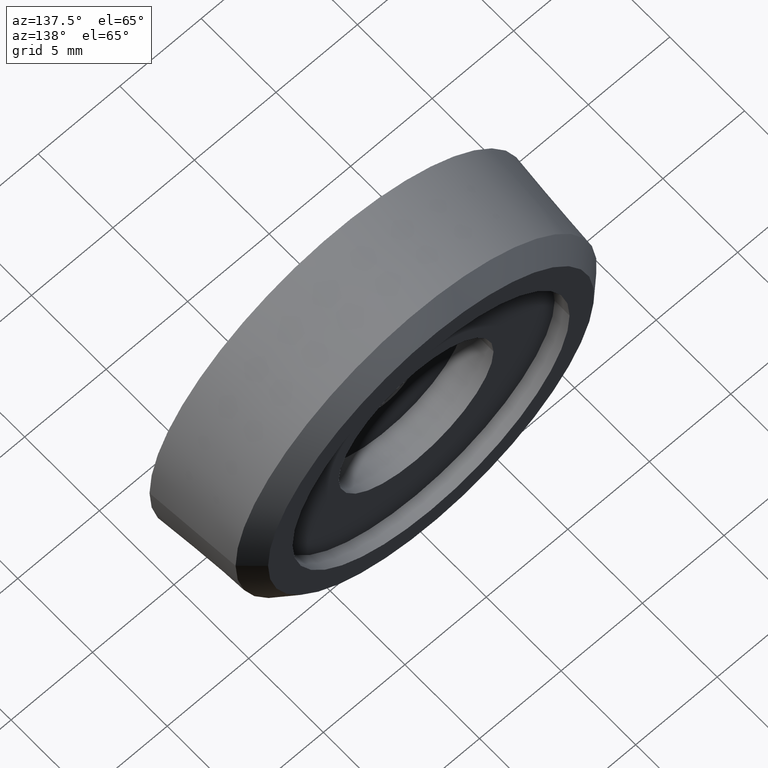
[diagram: clean part render]
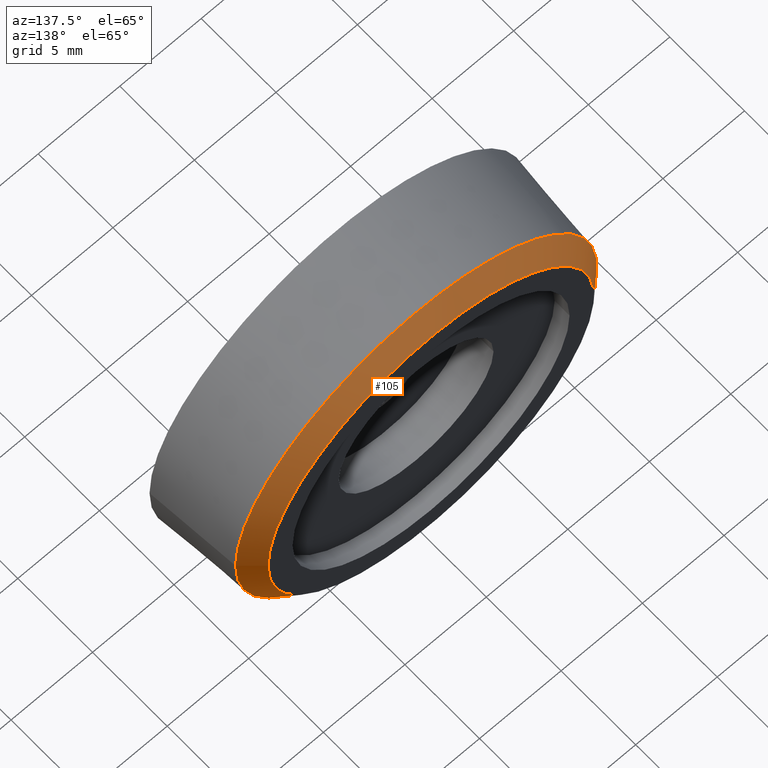
[diagram: same view with one face highlighted and labeled with its STEP entity id]
A machine part, auxiliary view. The second image highlights one B-rep face of the part: STEP entity #105.
In plain terms, the highlighted conical surface has half-angle 47.269 deg.
Its self-contained STEP definition (entity closure, byte-faithful):
#22=FACE_BOUND('',#41,.T.);
#31=FACE_OUTER_BOUND('',#40,.T.);
#40=EDGE_LOOP('',(#85));
#41=EDGE_LOOP('',(#86));
#58=CIRCLE('',#117,10.);
#59=CIRCLE('',#118,11.0791163009981);
#67=VERTEX_POINT('',#174);
#68=VERTEX_POINT('',#176);
#76=EDGE_CURVE('',#67,#67,#58,.T.);
#77=EDGE_CURVE('',#68,#68,#59,.T.);
#85=ORIENTED_EDGE('',*,*,#76,.T.);
#86=ORIENTED_EDGE('',*,*,#77,.T.);
#103=CONICAL_SURFACE('',#116,10.5395581504991,47.2688862539534);
#105=ADVANCED_FACE('',(#31,#22),#103,.T.);
#116=AXIS2_PLACEMENT_3D('',#173,#136,#137);
#117=AXIS2_PLACEMENT_3D('',#175,#138,#139);
#118=AXIS2_PLACEMENT_3D('',#177,#140,#141);
#136=DIRECTION('center_axis',(0.,-1.,6.80533420883082E-16));
#137=DIRECTION('ref_axis',(-1.,0.,3.21835225956701E-17));
#138=DIRECTION('center_axis',(0.,-1.,0.));
#139=DIRECTION('ref_axis',(-1.,0.,0.));
#140=DIRECTION('center_axis',(0.,1.,0.));
#141=DIRECTION('ref_axis',(-1.,0.,6.12323399573677E-17));
#173=CARTESIAN_POINT('Origin',(0.,5.80156730371183,3.39200107884965E-16));
#174=CARTESIAN_POINT('',(10.,6.3,1.22464679914735E-15));
#175=CARTESIAN_POINT('Origin',(0.,6.3,0.));
#176=CARTESIAN_POINT('',(11.0791163009981,5.30313460742366,-1.35680043153986E-15));
#177=CARTESIAN_POINT('Origin',(0.,5.30313460742366,6.78400215769931E-16));